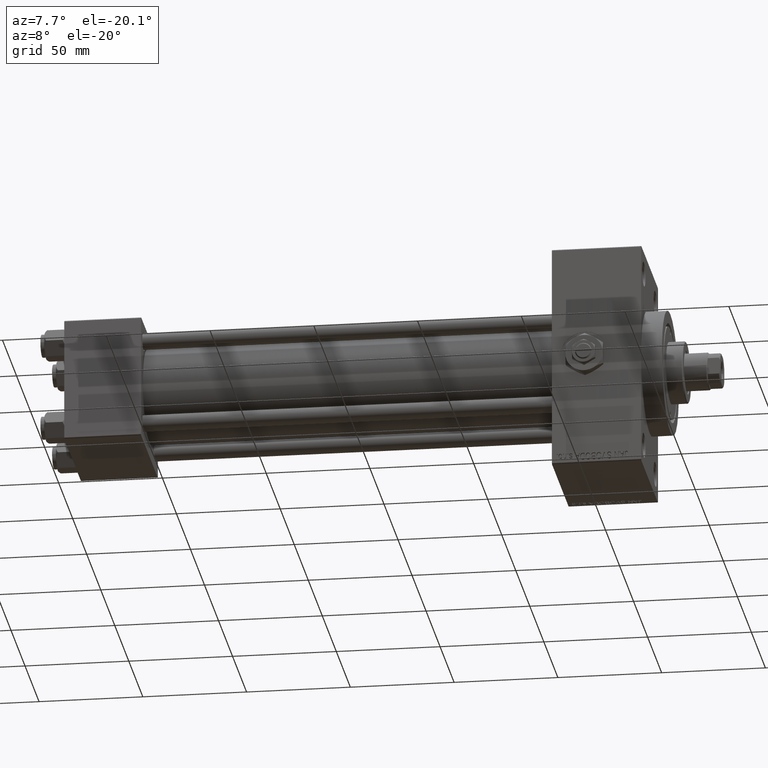
[diagram: clean part render]
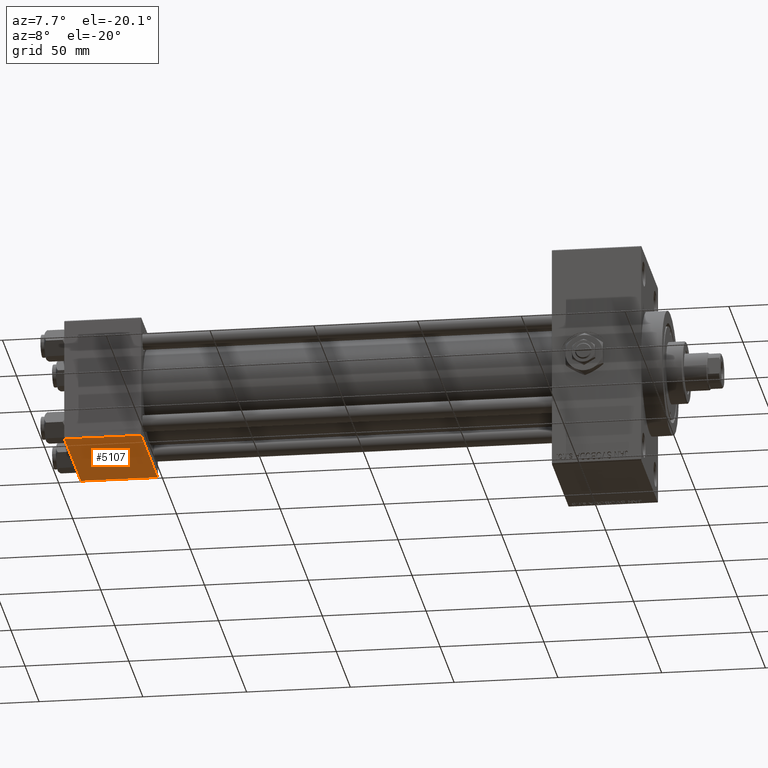
[diagram: same view with one face highlighted and labeled with its STEP entity id]
A machine part, auxiliary view. The second image highlights one B-rep face of the part: STEP entity #5107.
In plain terms, the highlighted planar face has unit normal (0, 0, -1).
Its self-contained STEP definition (entity closure, byte-faithful):
#3292 = VECTOR ( 'NONE', #31015, 1000.000000000000000 ) ;
#3303 = CARTESIAN_POINT ( 'NONE',  ( 0.000000000000000000, -29.50000000000001066, -30.00000000000000711 ) ) ;
#4923 = EDGE_CURVE ( 'NONE', #15253, #23018, #33645, .T. ) ;
#5107 = ADVANCED_FACE ( 'NONE', ( #24642 ), #6929, .T. ) ;
#5201 = VERTEX_POINT ( 'NONE', #48697 ) ;
#6548 = LINE ( 'NONE', #36617, #12890 ) ;
#6929 = PLANE ( 'NONE',  #31301 ) ;
#11026 = DIRECTION ( 'NONE',  ( -1.000000000000000000, 0.000000000000000000, 0.000000000000000000 ) ) ;
#11548 = CARTESIAN_POINT ( 'NONE',  ( 0.000000000000000000, -29.50000000000000000, -30.00000000000000711 ) ) ;
#11794 = VECTOR ( 'NONE', #33992, 1000.000000000000000 ) ;
#12427 = ORIENTED_EDGE ( 'NONE', *, *, #45069, .T. ) ;
#12890 = VECTOR ( 'NONE', #14007, 1000.000000000000000 ) ;
#14007 = DIRECTION ( 'NONE',  ( 0.000000000000000000, -1.000000000000000000, -1.156482317317871725E-16 ) ) ;
#15253 = VERTEX_POINT ( 'NONE', #28349 ) ;
#16491 = CARTESIAN_POINT ( 'NONE',  ( 0.000000000000000000, 29.49999999999997868, -30.00000000000000000 ) ) ;
#18237 = EDGE_CURVE ( 'NONE', #44910, #23018, #45428, .T. ) ;
#23018 = VERTEX_POINT ( 'NONE', #11548 ) ;
#24642 = FACE_OUTER_BOUND ( 'NONE', #48038, .T. ) ;
#24886 = DIRECTION ( 'NONE',  ( 0.000000000000000000, 1.000000000000000000, 1.156482317317871725E-16 ) ) ;
#24925 = VECTOR ( 'NONE', #11026, 1000.000000000000000 ) ;
#27287 = CARTESIAN_POINT ( 'NONE',  ( 37.00000000000000000, 29.49999999999997868, -30.00000000000000000 ) ) ;
#28349 = CARTESIAN_POINT ( 'NONE',  ( 37.00000000000000000, -29.50000000000000000, -30.00000000000000711 ) ) ;
#29869 = ORIENTED_EDGE ( 'NONE', *, *, #39383, .T. ) ;
#31015 = DIRECTION ( 'NONE',  ( 1.000000000000000000, 0.000000000000000000, 0.000000000000000000 ) ) ;
#31301 = AXIS2_PLACEMENT_3D ( 'NONE', #48945, #41482, #24886 ) ;
#33645 = LINE ( 'NONE', #3303, #24925 ) ;
#33992 = DIRECTION ( 'NONE',  ( 0.000000000000000000, -1.000000000000000000, -1.156482317317871725E-16 ) ) ;
#35452 = ORIENTED_EDGE ( 'NONE', *, *, #18237, .F. ) ;
#36617 = CARTESIAN_POINT ( 'NONE',  ( 37.00000000000000000, 29.99999999999999289, -30.00000000000000000 ) ) ;
#39383 = EDGE_CURVE ( 'NONE', #44910, #5201, #39699, .T. ) ;
#39699 = LINE ( 'NONE', #27287, #3292 ) ;
#40716 = CARTESIAN_POINT ( 'NONE',  ( 0.000000000000000000, 29.99999999999999289, -30.00000000000000000 ) ) ;
#41175 = ORIENTED_EDGE ( 'NONE', *, *, #4923, .T. ) ;
#41482 = DIRECTION ( 'NONE',  ( 0.000000000000000000, 1.156482317317871725E-16, -1.000000000000000000 ) ) ;
#44910 = VERTEX_POINT ( 'NONE', #16491 ) ;
#45069 = EDGE_CURVE ( 'NONE', #5201, #15253, #6548, .T. ) ;
#45428 = LINE ( 'NONE', #40716, #11794 ) ;
#48038 = EDGE_LOOP ( 'NONE', ( #35452, #29869, #12427, #41175 ) ) ;
#48697 = CARTESIAN_POINT ( 'NONE',  ( 37.00000000000000000, 29.49999999999997868, -30.00000000000000000 ) ) ;
#48945 = CARTESIAN_POINT ( 'NONE',  ( 37.00000000000000000, 29.99999999999999289, -30.00000000000000000 ) ) ;